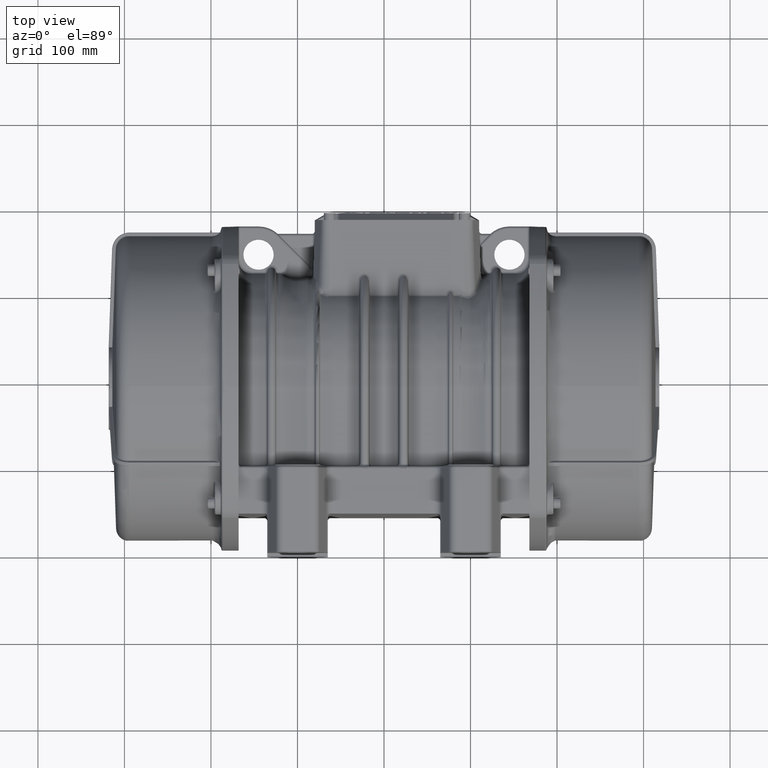
[diagram: clean part render]
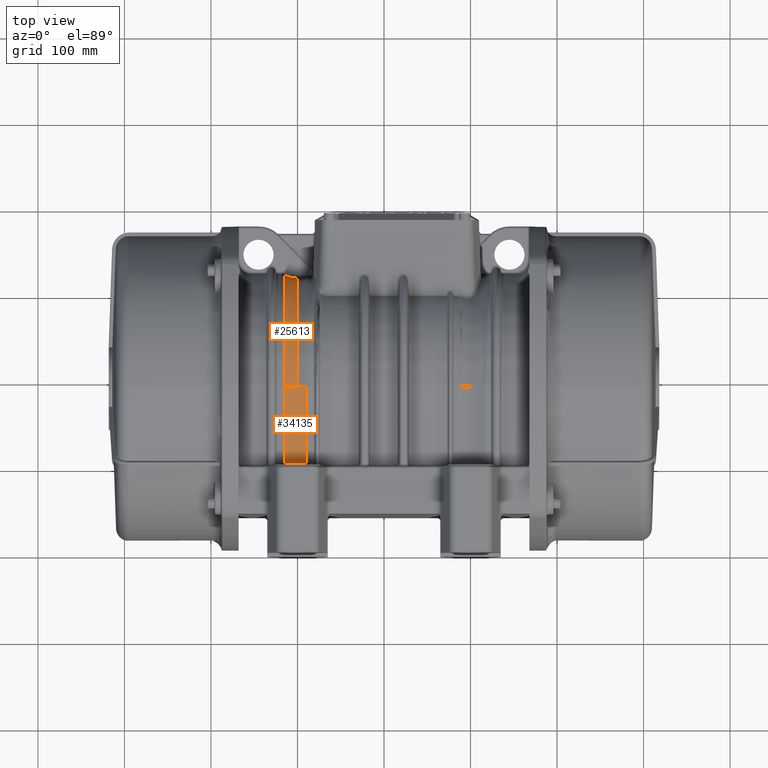
[diagram: same view with one multi-face feature highlighted, each face labeled with its STEP entity id]
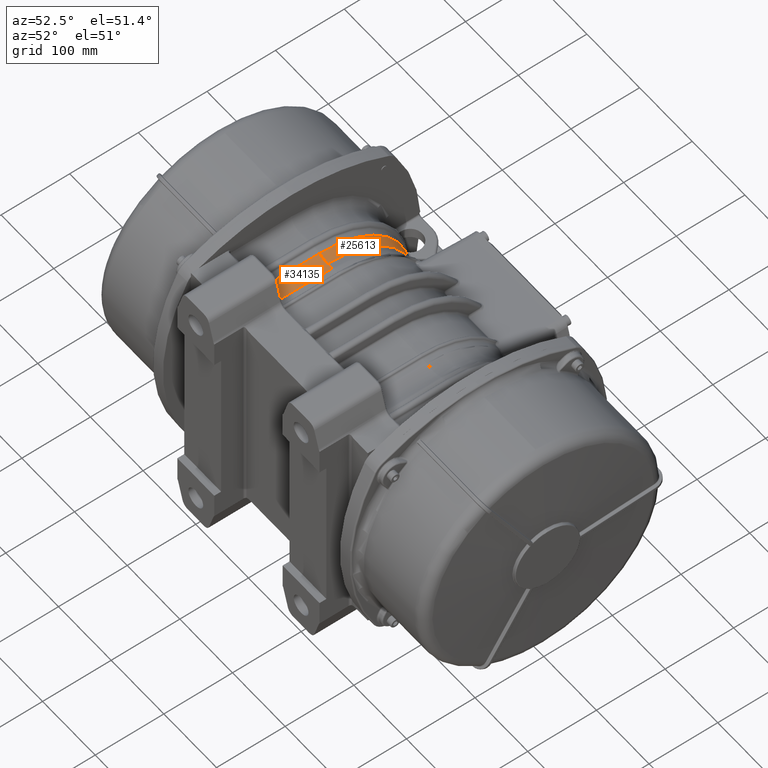
[diagram: same view with one multi-face feature highlighted, each face labeled with its STEP entity id]
A machine part, top view. The highlighted faces form ONE feature: a constant-radius fillet chain: 2 tangent blend faces with common blend radius 32 mm. The faces share edges in the B-rep.
A second angle (auxiliary view) of the same feature is appended — it is thin or edge-on in the first view.
Their STEP definitions:
[1] entity #25613 (Torus):
#12159 = CARTESIAN_POINT ( 'NONE',  ( -115.1425576490242000, 323.4069717221599900, 10.29360722507524200 ) ) ;
#12274 = CARTESIAN_POINT ( 'NONE',  ( -100.0000000000000000, 192.0000000000000000, 160.0000000000000000 ) ) ;
#12291 = FACE_OUTER_BOUND ( 'NONE', #25551, .T. ) ;
#12294 = CIRCLE ( 'NONE', #12324, 32.00000000000000000 ) ;
#12322 = DIRECTION ( 'NONE',  ( 0.0000000000000000000, 3.469446951953614200E-015, -1.000000000000000000 ) ) ;
#12323 = DIRECTION ( 'NONE',  ( 0.0000000000000000000, 1.000000000000000000, 3.491483361109380100E-015 ) ) ;
#12324 = AXIS2_PLACEMENT_3D ( 'NONE', #12274, #12323, #12322 ) ;
#12367 = DIRECTION ( 'NONE',  ( 3.252606517456513300E-016, -1.000000000000000000, 0.0000000000000000000 ) ) ;
#12368 = DIRECTION ( 'NONE',  ( -1.000000000000000000, -2.954685734924855400E-016, 0.0000000000000000000 ) ) ;
#12369 = CARTESIAN_POINT ( 'NONE',  ( -100.0000000000000000, 192.0000000000000000, 0.0000000000000000000 ) ) ;
#12372 = DIRECTION ( 'NONE',  ( 2.954685734924855800E-016, -1.000000000000000000, 0.0000000000000000000 ) ) ;
#12373 = DIRECTION ( 'NONE',  ( -1.000000000000000000, -2.954685734924855400E-016, 0.0000000000000000000 ) ) ;
#12374 = CARTESIAN_POINT ( 'NONE',  ( -100.0000000000000000, 192.0000000000000000, 0.0000000000000000000 ) ) ;
#12378 = CIRCLE ( 'NONE', #12382, 128.0000000000000000 ) ;
#12382 = AXIS2_PLACEMENT_3D ( 'NONE', #12369, #12368, #12367 ) ;
#12383 = TOROIDAL_SURFACE ( 'NONE', #12385, 160.0000000000000000, 32.00000000000000000 ) ;
#12385 = AXIS2_PLACEMENT_3D ( 'NONE', #12374, #12373, #12372 ) ;
#12387 = CIRCLE ( 'NONE', #12405, 131.8095238095207800 ) ;
#12388 = CARTESIAN_POINT ( 'NONE',  ( -115.1425576490242000, 323.4069717221599900, 10.29360722507524200 ) ) ;
#12389 = CARTESIAN_POINT ( 'NONE',  ( -113.9768575253984900, 322.7793232793738400, 10.28815181715696700 ) ) ;
#12390 = CARTESIAN_POINT ( 'NONE',  ( -112.7770329408031500, 322.2263149147074700, 10.28327697409798200 ) ) ;
#12391 = CARTESIAN_POINT ( 'NONE',  ( -110.3091606439289600, 321.2695211798126700, 10.27477238842234000 ) ) ;
#12392 = CARTESIAN_POINT ( 'NONE',  ( -109.0555774766271400, 320.8715715027796600, 10.27119483125065000 ) ) ;
#12393 = CARTESIAN_POINT ( 'NONE',  ( -106.5207242384547200, 320.2339483645022800, 10.26543417845875400 ) ) ;
#12394 = CARTESIAN_POINT ( 'NONE',  ( -105.2377793767376600, 319.9936433944000700, 10.26324536460404800 ) ) ;
#12395 = CARTESIAN_POINT ( 'NONE',  ( -103.2899890246948300, 319.7514296745937400, 10.26103533244255700 ) ) ;
#12396 = CARTESIAN_POINT ( 'NONE',  ( -102.6368193238026500, 319.6904533939607500, 10.26047781019429600 ) ) ;
#12397 = CARTESIAN_POINT ( 'NONE',  ( -101.3225168424745700, 319.6087858355707000, 10.25973077659701700 ) ) ;
#12398 = CARTESIAN_POINT ( 'NONE',  ( -100.6592316817796700, 319.5881726425435500, 10.25954198473282700 ) ) ;
#12402 = DIRECTION ( 'NONE',  ( 3.158600548743969800E-016, -1.000000000000000000, 0.0000000000000000000 ) ) ;
#12403 = DIRECTION ( 'NONE',  ( -1.000000000000000000, -2.954685734924855400E-016, 0.0000000000000000000 ) ) ;
#12404 = CARTESIAN_POINT ( 'NONE',  ( -115.1425576490242000, 192.0000000000000000, 0.0000000000000000000 ) ) ;
#12405 = AXIS2_PLACEMENT_3D ( 'NONE', #12404, #12403, #12402 ) ;
#12406 = CARTESIAN_POINT ( 'NONE',  ( -100.0000000000000300, 319.5881726425435000, 10.25954198473282600 ) ) ;
#12407 = B_SPLINE_CURVE_WITH_KNOTS ( 'NONE', 3,
 ( #12406, #12398, #12397, #12396, #12395, #12394, #12393, #12392, #12391, #12390, #12389, #12388 ),
 .UNSPECIFIED., .F., .F.,
 ( 4, 2, 2, 2, 2, 4 ),
 ( 0.009875133607291024200, 0.01183291719014007900, 0.01379070077298913600, 0.01770626793868718800, 0.02162183510438523600, 0.02553740227008328600 ),
 .UNSPECIFIED. ) ;
#12507 = CARTESIAN_POINT ( 'NONE',  ( -115.1425576490242000, 192.0000000000000000, 131.8095238095207800 ) ) ;
#12597 = CARTESIAN_POINT ( 'NONE',  ( -100.0000000000000300, 319.5881726425435000, 10.25954198473282600 ) ) ;
#14035 = CARTESIAN_POINT ( 'NONE',  ( -100.0000000000000300, 192.0000000000001100, 128.0000000000000000 ) ) ;
#25551 = EDGE_LOOP ( 'NONE', ( #25572, #25648, #25620, #25627 ) ) ;
#25571 = VERTEX_POINT ( 'NONE', #12159 ) ;
#25572 = ORIENTED_EDGE ( 'NONE', *, *, #25602, .F. ) ;
#25602 = EDGE_CURVE ( 'NONE', #26009, #25677, #12294, .T. ) ;
#25613 = ADVANCED_FACE ( 'NONE', ( #12291 ), #12383, .F. ) ;
#25618 = EDGE_CURVE ( 'NONE', #26009, #25689, #12378, .T. ) ;
#25620 = ORIENTED_EDGE ( 'NONE', *, *, #25623, .T. ) ;
#25623 = EDGE_CURVE ( 'NONE', #25689, #25571, #12407, .T. ) ;
#25627 = ORIENTED_EDGE ( 'NONE', *, *, #25628, .F. ) ;
#25628 = EDGE_CURVE ( 'NONE', #25677, #25571, #12387, .T. ) ;
#25648 = ORIENTED_EDGE ( 'NONE', *, *, #25618, .T. ) ;
#25677 = VERTEX_POINT ( 'NONE', #12507 ) ;
#25689 = VERTEX_POINT ( 'NONE', #12597 ) ;
#26009 = VERTEX_POINT ( 'NONE', #14035 ) ;
[2] entity #34135 (Cylinder):
#12274 = CARTESIAN_POINT ( 'NONE',  ( -100.0000000000000000, 192.0000000000000000, 160.0000000000000000 ) ) ;
#12294 = CIRCLE ( 'NONE', #12324, 32.00000000000000000 ) ;
#12322 = DIRECTION ( 'NONE',  ( 0.0000000000000000000, 3.469446951953614200E-015, -1.000000000000000000 ) ) ;
#12323 = DIRECTION ( 'NONE',  ( 0.0000000000000000000, 1.000000000000000000, 3.491483361109380100E-015 ) ) ;
#12324 = AXIS2_PLACEMENT_3D ( 'NONE', #12274, #12323, #12322 ) ;
#12507 = CARTESIAN_POINT ( 'NONE',  ( -115.1425576490242000, 192.0000000000000000, 131.8095238095207800 ) ) ;
#14035 = CARTESIAN_POINT ( 'NONE',  ( -100.0000000000000300, 192.0000000000001100, 128.0000000000000000 ) ) ;
#25602 = EDGE_CURVE ( 'NONE', #26009, #25677, #12294, .T. ) ;
#25677 = VERTEX_POINT ( 'NONE', #12507 ) ;
#26009 = VERTEX_POINT ( 'NONE', #14035 ) ;
#34133 = ORIENTED_EDGE ( 'NONE', *, *, #34200, .T. ) ;
#34134 = VERTEX_POINT ( 'NONE', #67271 ) ;
#34135 = ADVANCED_FACE ( 'NONE', ( #67279 ), #67260, .F. ) ;
#34136 = VERTEX_POINT ( 'NONE', #67262 ) ;
#34137 = ORIENTED_EDGE ( 'NONE', *, *, #34139, .F. ) ;
#34138 = EDGE_CURVE ( 'NONE', #34163, #34134, #67321, .T. ) ;
#34139 = EDGE_CURVE ( 'NONE', #34163, #25677, #67322, .T. ) ;
#34147 = EDGE_CURVE ( 'NONE', #34136, #26009, #67295, .T. ) ;
#34151 = ORIENTED_EDGE ( 'NONE', *, *, #34138, .T. ) ;
#34159 = EDGE_LOOP ( 'NONE', ( #34137, #34151, #34133, #34204, #34203 ) ) ;
#34163 = VERTEX_POINT ( 'NONE', #67378 ) ;
#34200 = EDGE_CURVE ( 'NONE', #34134, #34136, #67494, .T. ) ;
#34203 = ORIENTED_EDGE ( 'NONE', *, *, #25602, .T. ) ;
#34204 = ORIENTED_EDGE ( 'NONE', *, *, #34147, .T. ) ;
#67247 = CARTESIAN_POINT ( 'NONE',  ( -100.0000000000000000, -350.4397850989635100, 160.0000000000000000 ) ) ;
#67260 = CYLINDRICAL_SURFACE ( 'NONE', #67276, 32.00000000000000000 ) ;
#67261 = DIRECTION ( 'NONE',  ( 0.0000000000000000000, 1.000000000000000000, 3.491483361109380100E-015 ) ) ;
#67262 = CARTESIAN_POINT ( 'NONE',  ( -90.24285830486431300, 192.0000000000000000, 129.5238095238096000 ) ) ;
#67264 = DIRECTION ( 'NONE',  ( 0.0000000000000000000, -3.469446951953614200E-015, 1.000000000000000000 ) ) ;
#67271 = CARTESIAN_POINT ( 'NONE',  ( -90.24285830486431300, 103.0000000000000000, 129.5238095238092100 ) ) ;
#67272 = DIRECTION ( 'NONE',  ( 0.0000000000000000000, 1.000000000000000000, 3.491483361109385200E-015 ) ) ;
#67276 = AXIS2_PLACEMENT_3D ( 'NONE', #67247, #67272, #67264 ) ;
#67279 = FACE_OUTER_BOUND ( 'NONE', #34159, .T. ) ;
#67292 = DIRECTION ( 'NONE',  ( 0.0000000000000000000, 3.469446951953614200E-015, -1.000000000000000000 ) ) ;
#67293 = AXIS2_PLACEMENT_3D ( 'NONE', #67297, #67261, #67292 ) ;
#67295 = CIRCLE ( 'NONE', #67293, 32.00000000000000000 ) ;
#67297 = CARTESIAN_POINT ( 'NONE',  ( -100.0000000000000000, 192.0000000000000000, 160.0000000000000000 ) ) ;
#67301 = DIRECTION ( 'NONE',  ( 0.0000000000000000000, 1.000000000000000000, 3.491483361109385200E-015 ) ) ;
#67302 = VECTOR ( 'NONE', #67301, 1000.000000000000000 ) ;
#67303 = CARTESIAN_POINT ( 'NONE',  ( -115.1425576490242000, -350.4397850989635100, 131.8095238095189900 ) ) ;
#67308 = DIRECTION ( 'NONE',  ( -1.734723475976807100E-015, 0.0000000000000000000, 1.000000000000000000 ) ) ;
#67309 = DIRECTION ( 'NONE',  ( -0.0000000000000000000, -1.000000000000000000, -0.0000000000000000000 ) ) ;
#67311 = CARTESIAN_POINT ( 'NONE',  ( -100.0000000000000000, 103.0000000000000000, 160.0000000000000000 ) ) ;
#67312 = AXIS2_PLACEMENT_3D ( 'NONE', #67311, #67309, #67308 ) ;
#67321 = CIRCLE ( 'NONE', #67312, 32.00000000000000000 ) ;
#67322 = LINE ( 'NONE', #67303, #67302 ) ;
#67378 = CARTESIAN_POINT ( 'NONE',  ( -115.1425576490242000, 103.0000000000000000, 131.8095238095204100 ) ) ;
#67489 = DIRECTION ( 'NONE',  ( 0.0000000000000000000, 1.000000000000000000, 3.491483361109385200E-015 ) ) ;
#67490 = VECTOR ( 'NONE', #67489, 1000.000000000000000 ) ;
#67491 = CARTESIAN_POINT ( 'NONE',  ( -90.24285830486431300, -350.4397850989635100, 129.5238095238075900 ) ) ;
#67494 = LINE ( 'NONE', #67491, #67490 ) ;